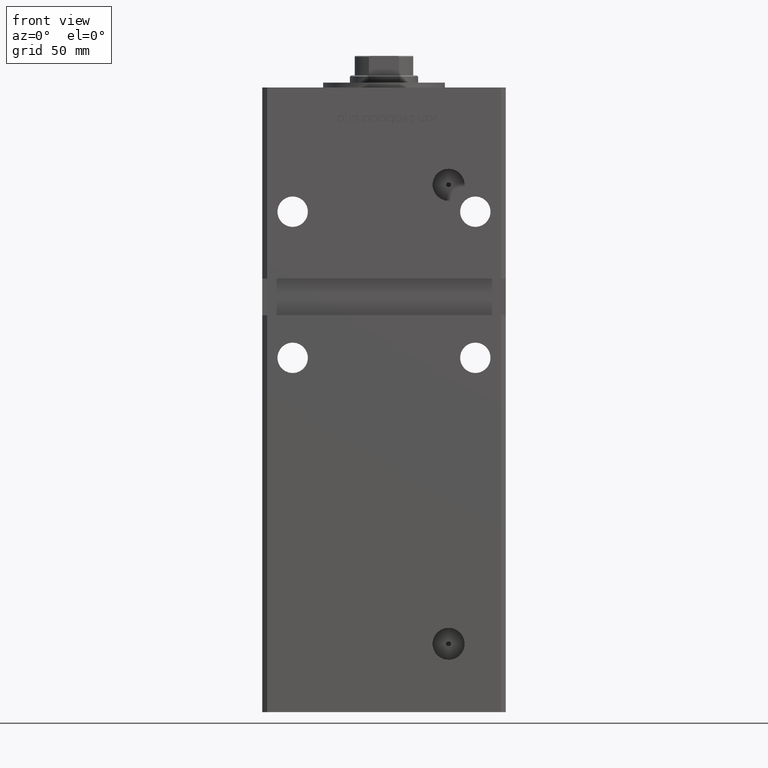
[diagram: clean part render]
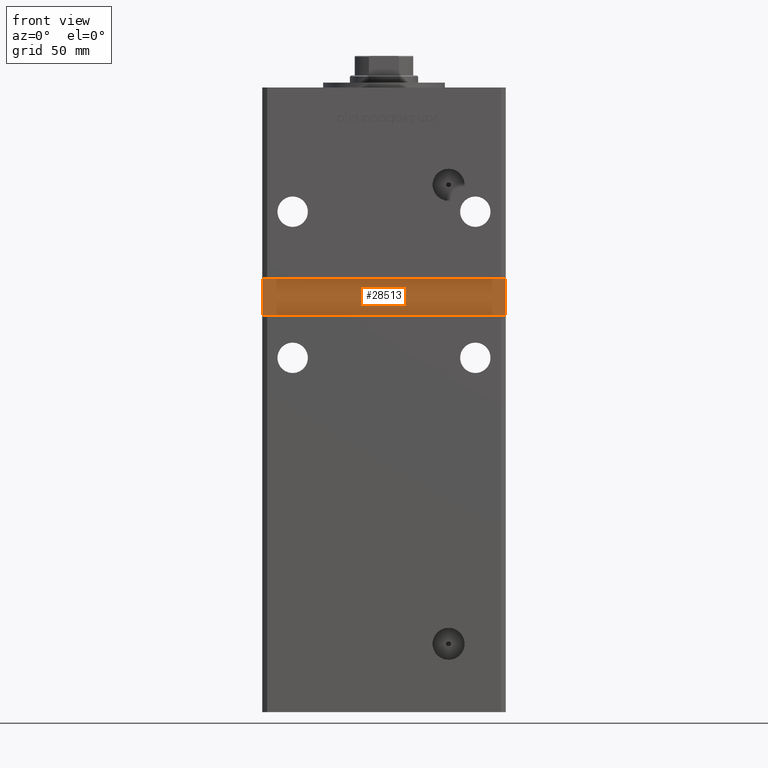
[diagram: same view with one face highlighted and labeled with its STEP entity id]
A machine part, front view. The second image highlights one B-rep face of the part: STEP entity #28513.
In plain terms, the highlighted planar face has unit normal (0, -1, 0).
Its self-contained STEP definition (entity closure, byte-faithful):
#125 = LINE ( 'NONE', #28849, #7358 ) ;
#1306 = DIRECTION ( 'NONE',  ( 0.000000000000000000, -1.000000000000000000, 0.000000000000000000 ) ) ;
#1570 = FACE_OUTER_BOUND ( 'NONE', #44732, .T. ) ;
#4673 = LINE ( 'NONE', #37434, #6540 ) ;
#5894 = EDGE_CURVE ( 'NONE', #34669, #16968, #125, .T. ) ;
#5995 = ORIENTED_EDGE ( 'NONE', *, *, #5894, .T. ) ;
#6540 = VECTOR ( 'NONE', #29375, 1000.000000000000000 ) ;
#7358 = VECTOR ( 'NONE', #28318, 1000.000000000000000 ) ;
#8011 = EDGE_CURVE ( 'NONE', #10703, #34669, #43745, .T. ) ;
#10703 = VERTEX_POINT ( 'NONE', #18710 ) ;
#11845 = DIRECTION ( 'NONE',  ( -1.000000000000000000, -0.000000000000000000, -0.000000000000000000 ) ) ;
#13167 = VERTEX_POINT ( 'NONE', #29311 ) ;
#13394 = DIRECTION ( 'NONE',  ( 0.000000000000000000, -0.000000000000000000, -1.000000000000000000 ) ) ;
#14124 = CARTESIAN_POINT ( 'NONE',  ( 49.99999999999998579, -38.49999999999999289, 144.0000000000000284 ) ) ;
#15794 = DIRECTION ( 'NONE',  ( 0.000000000000000000, 0.000000000000000000, -1.000000000000000000 ) ) ;
#16968 = VERTEX_POINT ( 'NONE', #14124 ) ;
#18710 = CARTESIAN_POINT ( 'NONE',  ( -49.99999999999998579, -38.50000000000000000, 159.0000000000000000 ) ) ;
#19312 = CARTESIAN_POINT ( 'NONE',  ( -49.99999999999998579, -38.50000000000000000, 159.0000000000000000 ) ) ;
#20300 = VECTOR ( 'NONE', #15794, 1000.000000000000000 ) ;
#21478 = CARTESIAN_POINT ( 'NONE',  ( 0.000000000000000000, -38.50000000000000000, 0.000000000000000000 ) ) ;
#27960 = CARTESIAN_POINT ( 'NONE',  ( -49.99999999999998579, -38.50000000000000000, 159.0000000000000000 ) ) ;
#28233 = EDGE_CURVE ( 'NONE', #16968, #13167, #4673, .T. ) ;
#28318 = DIRECTION ( 'NONE',  ( 1.000000000000000000, 0.000000000000000000, 0.000000000000000000 ) ) ;
#28513 = ADVANCED_FACE ( 'NONE', ( #1570 ), #50221, .T. ) ;
#28849 = CARTESIAN_POINT ( 'NONE',  ( -49.99999999999998579, -38.50000000000000000, 144.0000000000000284 ) ) ;
#29311 = CARTESIAN_POINT ( 'NONE',  ( 49.99999999999998579, -38.50000000000000000, 159.0000000000000000 ) ) ;
#29375 = DIRECTION ( 'NONE',  ( -0.000000000000000000, -0.000000000000000000, 1.000000000000000000 ) ) ;
#32249 = LINE ( 'NONE', #27960, #40181 ) ;
#33782 = CARTESIAN_POINT ( 'NONE',  ( -49.99999999999998579, -38.50000000000000000, 144.0000000000000284 ) ) ;
#34669 = VERTEX_POINT ( 'NONE', #33782 ) ;
#35215 = EDGE_CURVE ( 'NONE', #13167, #10703, #32249, .T. ) ;
#37434 = CARTESIAN_POINT ( 'NONE',  ( 49.99999999999998579, -38.50000000000000000, 159.0000000000000000 ) ) ;
#39849 = ORIENTED_EDGE ( 'NONE', *, *, #28233, .T. ) ;
#40181 = VECTOR ( 'NONE', #11845, 1000.000000000000000 ) ;
#43745 = LINE ( 'NONE', #19312, #20300 ) ;
#44732 = EDGE_LOOP ( 'NONE', ( #39849, #48114, #49909, #5995 ) ) ;
#48114 = ORIENTED_EDGE ( 'NONE', *, *, #35215, .T. ) ;
#49909 = ORIENTED_EDGE ( 'NONE', *, *, #8011, .T. ) ;
#50221 = PLANE ( 'NONE',  #51175 ) ;
#51175 = AXIS2_PLACEMENT_3D ( 'NONE', #21478, #1306, #13394 ) ;